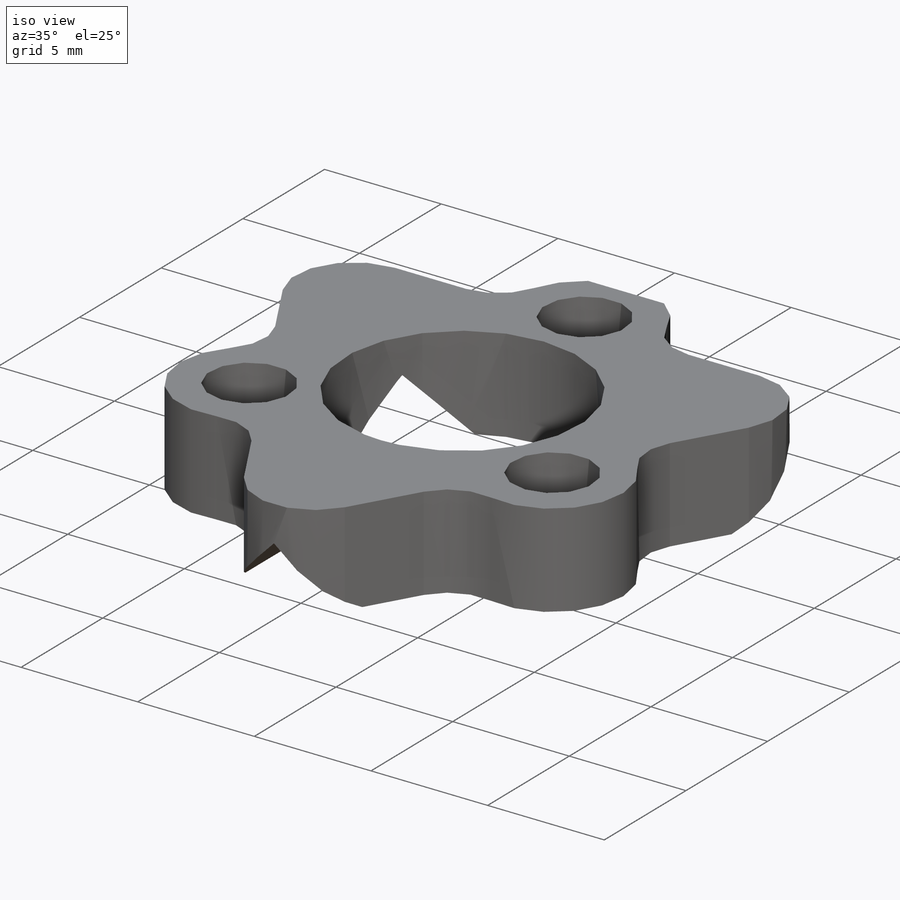
[diagram: iso view]
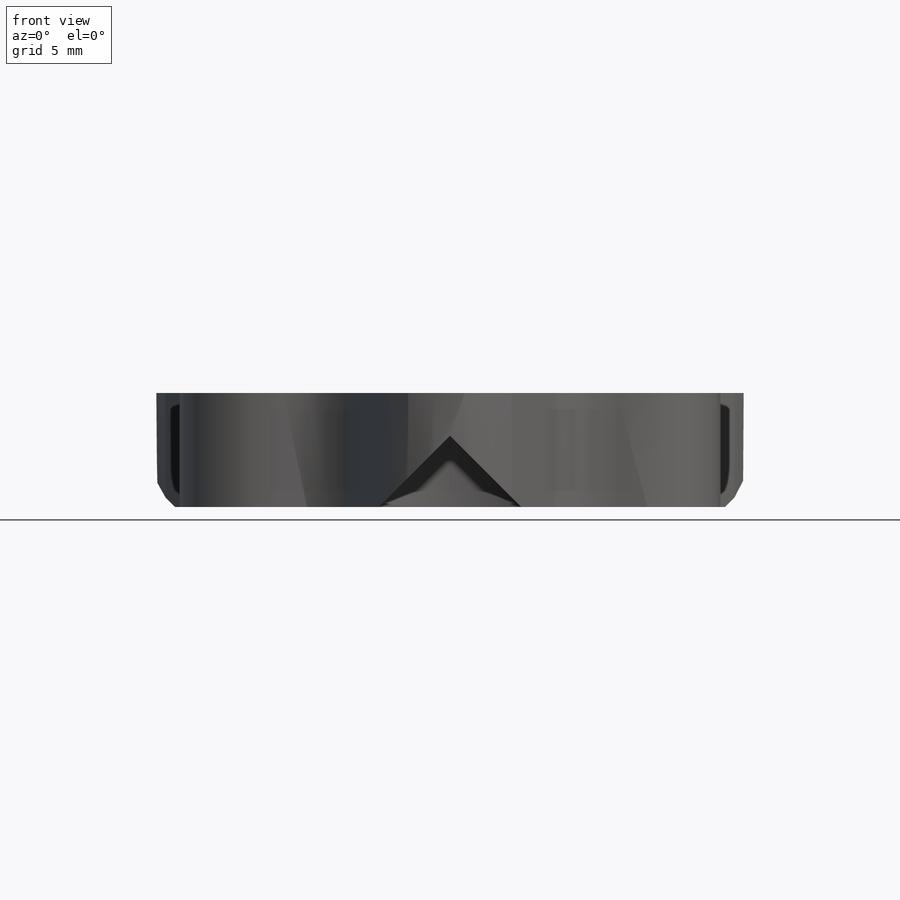
[diagram: front view]
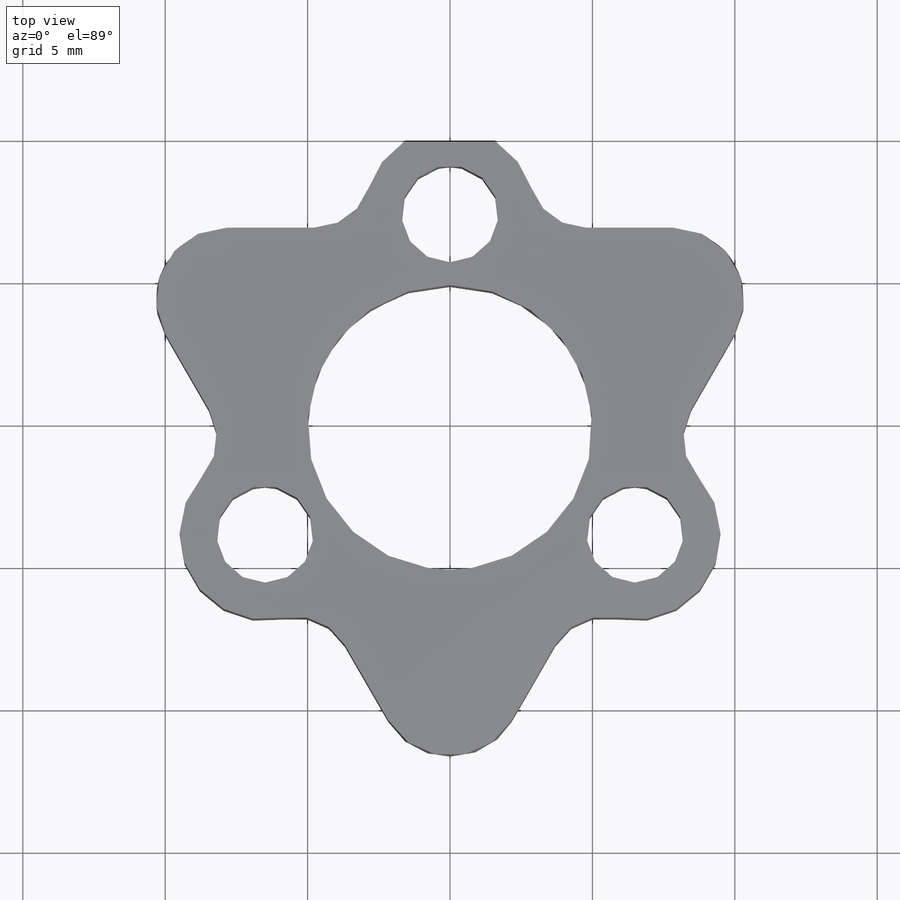
[diagram: top view]
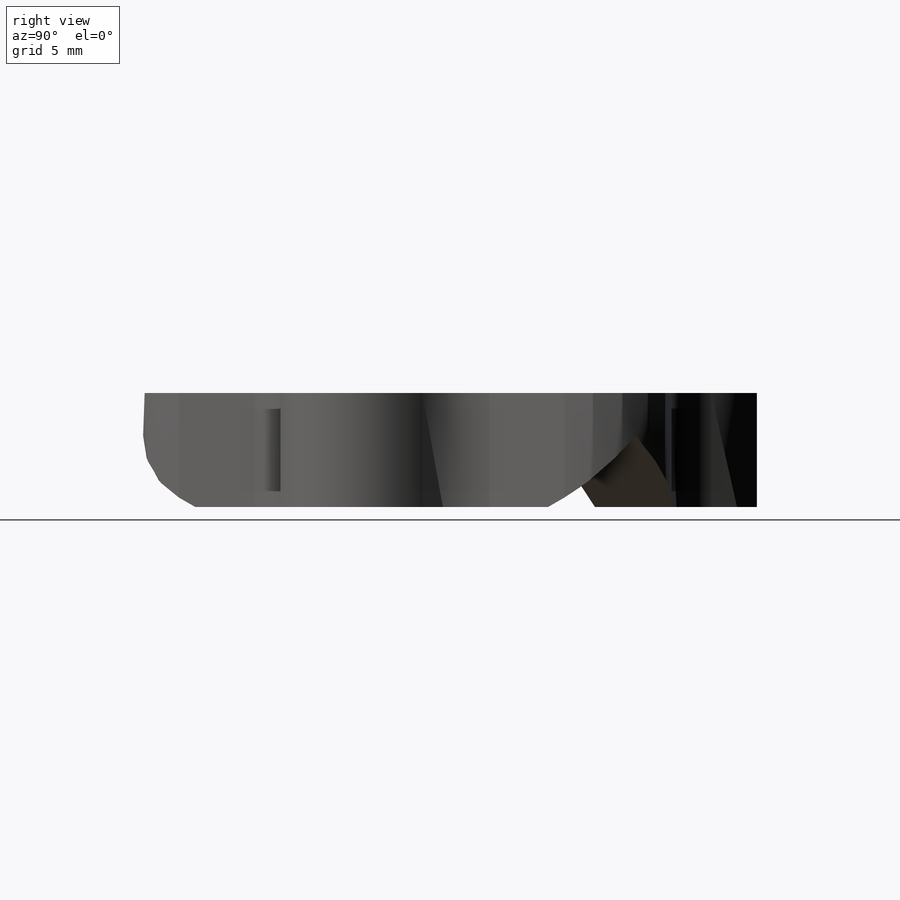
[diagram: right view]
SOLIDWORKS PART (.sldprt)
format: sldprt  version: not decoded by parser v0  size: 413,184 bytes
history: native  units: mm
features: sketch x15, hole x4, cut_extrude x4, plane x2, material x1, extrude x1, pattern_circular x1 (+15 scaffold rows collapsed)
feature tree (43):
  scaffold x15  (default folders/planes/origin — collapsed)
  material  "Chrome Stainless Steel"
  sketch  "Sketch1"  dims[c1.D1=2.5mm c1.D5=1.0mm c2.D1=10.0mm c2.D6=2.5mm c2.D5=15.0mm c2.D7=3.0mm c2.D8=2.0mm c2.D9=3.0mm c2.D10=3.0mm c2.D11=2.0mm c3.D9=2.0mm c3.D11=2.0mm c3.D12=3.0mm c3.D2=~14.352682mm c4.D2=120.0deg c4.D3=~13.069491mm c5.D3=240.0deg c5.D4=~7.545674mm c6.D4=60.0deg c7.D4=24.31mm c7.D6=~8.917862mm c7.D7=~9.953438mm c7.D8=10.0mm c8.D6=10.0mm c8.D13=0.0mm]
  extrude  "Extrude1"  Depth=4mm
  hole  "M3 Clearance Hole1"  Diameter=3.4mm Depth=10mm
  sketch  "3DSketch1"
  sketch  "Sketch6"  dims[hole-wizard template sketch: 50 standard entries collapsed; hole parameters above]
  pattern_circular  "CirPattern2"  Count=3 Angle=360deg
  sketch  "GrooveSketch"  dims[c1.D2=4.76mm c1.D1=3.18mm c1.D3=~4.330127mm c1.D4=3.18mm c2.D4=~68.49701deg c2.D1=3.18mm c3.D1=90.0deg c3.D4=~2.165064mm c4.D1=2.5mm c4.D3=3.0mm c5.D3=90.0deg c5.D4=~4.493486mm c6.D4=45.0deg]
  cut_extrude  "Extrude4"  [1 undecoded]
  plane  "Plane1"
  plane  "Plane2"
  sketch  "Sketch9"  dims[D1=4.76mm D2=2.5mm D3=90.0deg D4=45.0deg]
  cut_extrude  "Extrude5"  [1 undecoded]
  sketch  "Sketch10"  dims[D1=4.76mm D2=2.5mm D3=90.0deg D4=45.0deg]
  cut_extrude  "Extrude6"  [1 undecoded]
  sketch  "Sketch11"  dims[D1=3.0mm]
  cut_extrude  "Extrude7"  Depth=10mm
  sketch  "Sketch13"
  hole  "Ø0.5 (0.5) Diameter Hole1"  Diameter=0.5mm Depth=0.25mm
  sketch  "3DSketch2"  dims[D1=1.5mm]
  sketch  "Sketch14"  dims[hole-wizard template sketch: 46 standard entries collapsed; hole parameters kept: c15.Hole Dia.=0.5mm c15.Hole Depth=0.25mm c15.D3=~14.816244mm c15.Drill Angle=118.0deg]
  sketch  "Sketch16"
  hole  "Ø0.5 (0.5) Diameter Hole2"  Diameter=0.5mm Depth=0.25mm
  sketch  "3DSketch4"  dims[D1=1.5mm D2=6.5mm]
  sketch  "Sketch17"  dims[hole-wizard template sketch: 46 standard entries collapsed; hole parameters kept: c15.Hole Dia.=0.5mm c15.Hole Depth=0.25mm c15.D3=~14.816244mm c15.Drill Angle=118.0deg]
  hole  "Ø0.5 (0.5) Diameter Hole3"  Diameter=0.5mm Depth=0.25mm
  sketch  "3DSketch5"  dims[D1=1.5mm D2=6.5mm]
  sketch  "Sketch18"  dims[hole-wizard template sketch: 46 standard entries collapsed; hole parameters kept: c15.Hole Dia.=0.5mm c15.Hole Depth=0.25mm c15.D3=~14.816244mm c15.Drill Angle=118.0deg c15.BallDiameter=10.0mm]
decode coverage: 19 of 25 modeling features carry decoded parameters
note: ~ marks probable driven/reference dimensions
note: 3 parameter values undecoded
summary: no parameter record found for 3 features; Diameter pulled from absorbed wizard sketch
note: suppression state not decoded; provenance and decode notes live in map.json
